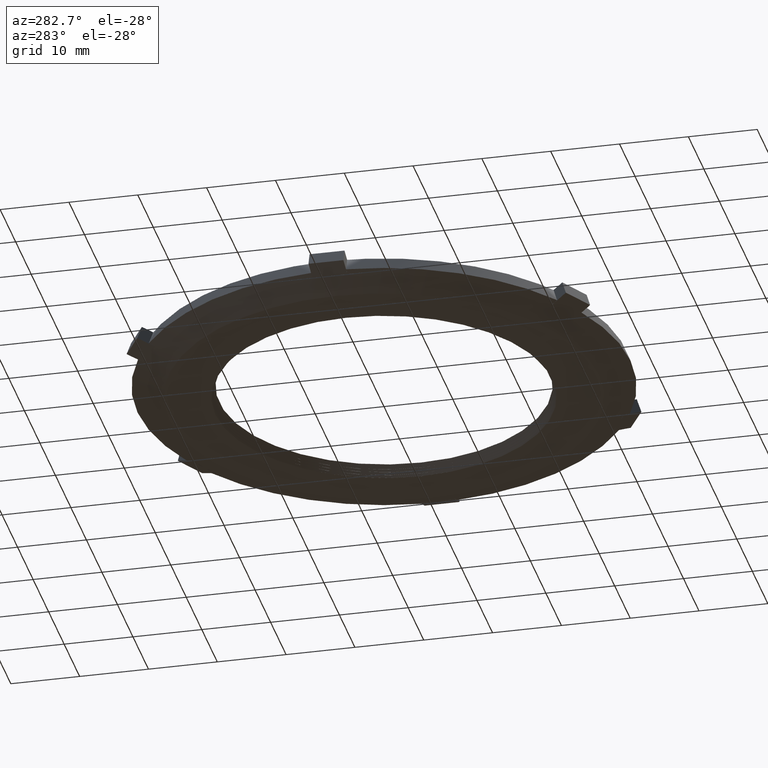
[diagram: clean part render]
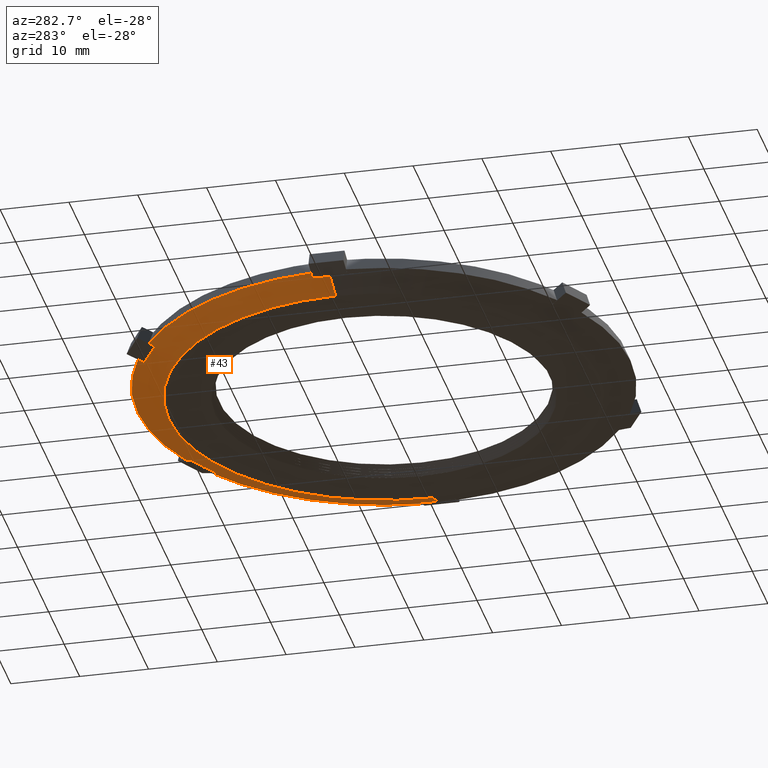
[diagram: same view with one face highlighted and labeled with its STEP entity id]
A machine part, auxiliary view. The second image highlights one B-rep face of the part: STEP entity #43.
In plain terms, the highlighted conical surface has half-angle 70 deg.
Its self-contained STEP definition (entity closure, byte-faithful):
#1 = ORIENTED_EDGE ( 'NONE', *, *, #20, .T. ) ;
#13 = VERTEX_POINT ( 'NONE', #783 ) ;
#14 = ORIENTED_EDGE ( 'NONE', *, *, #89, .F. ) ;
#17 = ORIENTED_EDGE ( 'NONE', *, *, #24, .F. ) ;
#19 = VERTEX_POINT ( 'NONE', #777 ) ;
#20 = EDGE_CURVE ( 'NONE', #19, #13, #776, .T. ) ;
#21 = VERTEX_POINT ( 'NONE', #772 ) ;
#22 = VERTEX_POINT ( 'NONE', #771 ) ;
#23 = ORIENTED_EDGE ( 'NONE', *, *, #270, .T. ) ;
#24 = EDGE_CURVE ( 'NONE', #19, #21, #769, .T. ) ;
#43 = ADVANCED_FACE ( 'NONE', ( #917 ), #914, .T. ) ;
#44 = EDGE_LOOP ( 'NONE', ( #17, #1, #14, #278, #23, #57, #240, #111, #152, #88, #173, #208, #232, #229, #275, #211, #213, #91 ) ) ;
#56 = VERTEX_POINT ( 'NONE', #888 ) ;
#57 = ORIENTED_EDGE ( 'NONE', *, *, #271, .F. ) ;
#82 = VERTEX_POINT ( 'NONE', #874 ) ;
#83 = EDGE_CURVE ( 'NONE', #171, #175, #869, .T. ) ;
#84 = EDGE_CURVE ( 'NONE', #85, #86, #863, .T. ) ;
#85 = VERTEX_POINT ( 'NONE', #862 ) ;
#86 = VERTEX_POINT ( 'NONE', #864 ) ;
#87 = EDGE_CURVE ( 'NONE', #151, #110, #1031, .T. ) ;
#88 = ORIENTED_EDGE ( 'NONE', *, *, #209, .T. ) ;
#89 = EDGE_CURVE ( 'NONE', #226, #13, #1024, .T. ) ;
#91 = ORIENTED_EDGE ( 'NONE', *, *, #114, .F. ) ;
#110 = VERTEX_POINT ( 'NONE', #957 ) ;
#111 = ORIENTED_EDGE ( 'NONE', *, *, #112, .F. ) ;
#112 = EDGE_CURVE ( 'NONE', #151, #277, #951, .T. ) ;
#114 = EDGE_CURVE ( 'NONE', #21, #171, #950, .T. ) ;
#145 = VERTEX_POINT ( 'NONE', #1059 ) ;
#151 = VERTEX_POINT ( 'NONE', #1102 ) ;
#152 = ORIENTED_EDGE ( 'NONE', *, *, #87, .T. ) ;
#171 = VERTEX_POINT ( 'NONE', #1131 ) ;
#172 = VERTEX_POINT ( 'NONE', #1130 ) ;
#173 = ORIENTED_EDGE ( 'NONE', *, *, #174, .F. ) ;
#174 = EDGE_CURVE ( 'NONE', #145, #22, #1128, .T. ) ;
#175 = VERTEX_POINT ( 'NONE', #1127 ) ;
#185 = EDGE_CURVE ( 'NONE', #277, #82, #1151, .T. ) ;
#208 = ORIENTED_EDGE ( 'NONE', *, *, #214, .F. ) ;
#209 = EDGE_CURVE ( 'NONE', #110, #22, #1197, .T. ) ;
#211 = ORIENTED_EDGE ( 'NONE', *, *, #212, .F. ) ;
#212 = EDGE_CURVE ( 'NONE', #175, #172, #1210, .T. ) ;
#213 = ORIENTED_EDGE ( 'NONE', *, *, #83, .F. ) ;
#214 = EDGE_CURVE ( 'NONE', #86, #145, #1215, .T. ) ;
#217 = VERTEX_POINT ( 'NONE', #1622 ) ;
#218 = EDGE_CURVE ( 'NONE', #226, #217, #1629, .T. ) ;
#226 = VERTEX_POINT ( 'NONE', #1624 ) ;
#229 = ORIENTED_EDGE ( 'NONE', *, *, #230, .T. ) ;
#230 = EDGE_CURVE ( 'NONE', #85, #231, #1228, .T. ) ;
#231 = VERTEX_POINT ( 'NONE', #1227 ) ;
#232 = ORIENTED_EDGE ( 'NONE', *, *, #84, .F. ) ;
#240 = ORIENTED_EDGE ( 'NONE', *, *, #185, .F. ) ;
#270 = EDGE_CURVE ( 'NONE', #217, #56, #1287, .T. ) ;
#271 = EDGE_CURVE ( 'NONE', #82, #56, #1315, .T. ) ;
#275 = ORIENTED_EDGE ( 'NONE', *, *, #276, .T. ) ;
#276 = EDGE_CURVE ( 'NONE', #231, #172, #1317, .T. ) ;
#277 = VERTEX_POINT ( 'NONE', #1332 ) ;
#278 = ORIENTED_EDGE ( 'NONE', *, *, #218, .T. ) ;
#765 = DIRECTION ( 'NONE',  ( -1.000000000000000000, 0.0000000000000000000, 0.0000000000000000000 ) ) ;
#766 = DIRECTION ( 'NONE',  ( -0.0000000000000000000, -0.0000000000000000000, -1.000000000000000000 ) ) ;
#767 = CARTESIAN_POINT ( 'NONE',  ( 0.0000000000000000000, 0.0000000000000000000, -0.07999999999999996000 ) ) ;
#768 = AXIS2_PLACEMENT_3D ( 'NONE', #767, #766, #765 ) ;
#769 = CIRCLE ( 'NONE', #768, 1.230000000000000000 ) ;
#771 = CARTESIAN_POINT ( 'NONE',  ( 0.6166221747731183100, 1.268020935780663500, -0.01448535783208483600 ) ) ;
#772 = CARTESIAN_POINT ( 'NONE',  ( 1.230000000000000000, 0.0000000000000000000, -0.07999999999999996000 ) ) ;
#773 = DIRECTION ( 'NONE',  ( -0.9396926207859105400, 1.150753554054427600E-016, 0.3420201433256630000 ) ) ;
#774 = VECTOR ( 'NONE', #773, 39.37007874015748900 ) ;
#775 = CARTESIAN_POINT ( 'NONE',  ( -1.409999999999999900, 1.726694958889552000E-016, -0.01448535783208477000 ) ) ;
#776 = LINE ( 'NONE', #775, #774 ) ;
#777 = CARTESIAN_POINT ( 'NONE',  ( -1.230000000000000000, 1.616480387045538300E-016, -0.07999999999999996000 ) ) ;
#783 = CARTESIAN_POINT ( 'NONE',  ( -1.369999999999999900, -9.698060377508134700E-015, -0.02904416720273242700 ) ) ;
#858 = CARTESIAN_POINT ( 'NONE',  ( 0.6849999999999973900, 1.186454803184682400, -0.02904416720273245200 ) ) ;
#859 = CARTESIAN_POINT ( 'NONE',  ( 0.7138674906260894500, 1.169788149700879300, -0.02904416720273267400 ) ) ;
#860 = CARTESIAN_POINT ( 'NONE',  ( 0.7426637777172788700, 1.152998115238294200, -0.02865278127056319900 ) ) ;
#861 = CARTESIAN_POINT ( 'NONE',  ( 0.7713892946446564400, 1.136085450739270100, -0.02787239152599532000 ) ) ;
#862 = CARTESIAN_POINT ( 'NONE',  ( 0.7713892946446564400, 1.136085450739270100, -0.02787239152599532000 ) ) ;
#863 = B_SPLINE_CURVE_WITH_KNOTS ( 'NONE', 3,
 ( #861, #860, #859, #858 ),
 .UNSPECIFIED., .F., .F.,
 ( 4, 4 ),
 ( 6.517402474198890000E-006, 0.002546515388295958800 ),
 .UNSPECIFIED. ) ;
#864 = CARTESIAN_POINT ( 'NONE',  ( 0.6849999999999973900, 1.186454803184682400, -0.02904416720273245200 ) ) ;
#865 = CARTESIAN_POINT ( 'NONE',  ( 1.369573508532430500, 0.09999999999999999200, -0.02787239152599538600 ) ) ;
#866 = CARTESIAN_POINT ( 'NONE',  ( 1.369857546946369000, 0.06666666666666668000, -0.02865278065454921300 ) ) ;
#867 = CARTESIAN_POINT ( 'NONE',  ( 1.369999999999999900, 0.03333333333333333300, -0.02904416720273260400 ) ) ;
#868 = CARTESIAN_POINT ( 'NONE',  ( 1.369999999999999900, 0.0000000000000000000, -0.02904416720273242700 ) ) ;
#869 = B_SPLINE_CURVE_WITH_KNOTS ( 'NONE', 3,
 ( #868, #867, #866, #865 ),
 .UNSPECIFIED., .F., .F.,
 ( 4, 4 ),
 ( 0.002540199999999999800, 0.005080200000000000000 ),
 .UNSPECIFIED. ) ;
#874 = CARTESIAN_POINT ( 'NONE',  ( -0.7713892946446643300, 1.136085450739265000, -0.02787239152599525100 ) ) ;
#888 = CARTESIAN_POINT ( 'NONE',  ( -0.7898272555300144300, 1.168020935780658600, -0.01448535783208478700 ) ) ;
#911 = DIRECTION ( 'NONE',  ( 1.000000000000000000, 0.0000000000000000000, 0.0000000000000000000 ) ) ;
#912 = DIRECTION ( 'NONE',  ( 0.0000000000000000000, 0.0000000000000000000, 1.000000000000000000 ) ) ;
#913 = AXIS2_PLACEMENT_3D ( 'NONE', #916, #912, #911 ) ;
#914 = CONICAL_SURFACE ( 'NONE', #913, 1.409999999999999900, 1.221730476396036800 ) ;
#916 = CARTESIAN_POINT ( 'NONE',  ( 0.0000000000000000000, 0.0000000000000000000, -0.01448535783208477000 ) ) ;
#917 = FACE_OUTER_BOUND ( 'NONE', #44, .T. ) ;
#943 = DIRECTION ( 'NONE',  ( 0.9396926207859105400, 0.0000000000000000000, 0.3420201433256630000 ) ) ;
#944 = VECTOR ( 'NONE', #943, 39.37007874015748900 ) ;
#945 = CARTESIAN_POINT ( 'NONE',  ( 1.409999999999999900, 0.0000000000000000000, -0.01448535783208477000 ) ) ;
#946 = CARTESIAN_POINT ( 'NONE',  ( -0.6850000000000054900, 1.186454803184677800, -0.02904416720273245200 ) ) ;
#947 = CARTESIAN_POINT ( 'NONE',  ( -0.6561324637071350700, 1.203121483034208100, -0.02904416720273258000 ) ) ;
#948 = CARTESIAN_POINT ( 'NONE',  ( -0.6271937236552243000, 1.219664781516571800, -0.02865278003854018400 ) ) ;
#949 = CARTESIAN_POINT ( 'NONE',  ( -0.5981842138877770900, 1.236085450739266000, -0.02787239152599525100 ) ) ;
#950 = LINE ( 'NONE', #945, #944 ) ;
#951 = B_SPLINE_CURVE_WITH_KNOTS ( 'NONE', 3,
 ( #949, #948, #947, #946 ),
 .UNSPECIFIED., .F., .F.,
 ( 4, 4 ),
 ( 1.945131258847855700E-005, 0.002559453316547011000 ),
 .UNSPECIFIED. ) ;
#957 = CARTESIAN_POINT ( 'NONE',  ( -0.6166221747731272000, 1.268020935780659100, -0.01448535783208482500 ) ) ;
#1019 = CARTESIAN_POINT ( 'NONE',  ( -1.369999999999999900, -9.698060377508134700E-015, -0.02904416720273242700 ) ) ;
#1020 = CARTESIAN_POINT ( 'NONE',  ( -1.370000000000000100, 0.03333333333332367400, -0.02904416720273264900 ) ) ;
#1021 = CARTESIAN_POINT ( 'NONE',  ( -1.369857546946369400, 0.06666666666665706200, -0.02865278065454929200 ) ) ;
#1022 = CARTESIAN_POINT ( 'NONE',  ( -1.369573508532431200, 0.09999999999999043000, -0.02787239152599538600 ) ) ;
#1024 = B_SPLINE_CURVE_WITH_KNOTS ( 'NONE', 3,
 ( #1022, #1021, #1020, #1019 ),
 .UNSPECIFIED., .F., .F.,
 ( 4, 4 ),
 ( 2.000000000048837700E-007, 0.002540200000000008100 ),
 .UNSPECIFIED. ) ;
#1027 = CARTESIAN_POINT ( 'NONE',  ( -0.6166221747731272000, 1.268020935780659100, -0.01448535783208482500 ) ) ;
#1028 = CARTESIAN_POINT ( 'NONE',  ( -0.6104762362707123500, 1.257375858034282900, -0.01894796936002788100 ) ) ;
#1029 = CARTESIAN_POINT ( 'NONE',  ( -0.6043302506046527300, 1.246730698598077500, -0.02341032108163182400 ) ) ;
#1030 = CARTESIAN_POINT ( 'NONE',  ( -0.5981842138877770900, 1.236085450739266000, -0.02787239152599525100 ) ) ;
#1031 = B_SPLINE_CURVE_WITH_KNOTS ( 'NONE', 3,
 ( #1030, #1029, #1028, #1027 ),
 .UNSPECIFIED., .F., .F.,
 ( 4, 4 ),
 ( 8.781270543147916000E-005, 0.001084271985295549500 ),
 .UNSPECIFIED. ) ;
#1042 = CARTESIAN_POINT ( 'NONE',  ( 0.6166221747731183100, 1.268020935780663500, -0.01448535783208483600 ) ) ;
#1043 = CARTESIAN_POINT ( 'NONE',  ( 0.6104762362707036900, 1.257375858034287300, -0.01894796936002783200 ) ) ;
#1044 = CARTESIAN_POINT ( 'NONE',  ( 0.6043302506046438500, 1.246730698598081900, -0.02341032108163180300 ) ) ;
#1045 = CARTESIAN_POINT ( 'NONE',  ( 0.5981842138877685500, 1.236085450739269800, -0.02787239152599538600 ) ) ;
#1059 = CARTESIAN_POINT ( 'NONE',  ( 0.5981842138877685500, 1.236085450739269800, -0.02787239152599538600 ) ) ;
#1102 = CARTESIAN_POINT ( 'NONE',  ( -0.5981842138877770900, 1.236085450739266000, -0.02787239152599525100 ) ) ;
#1127 = CARTESIAN_POINT ( 'NONE',  ( 1.369573508532430500, 0.09999999999999999200, -0.02787239152599538600 ) ) ;
#1128 = B_SPLINE_CURVE_WITH_KNOTS ( 'NONE', 3,
 ( #1045, #1044, #1043, #1042 ),
 .UNSPECIFIED., .F., .F.,
 ( 4, 4 ),
 ( 8.781270543147676100E-005, 0.001084271985295553600 ),
 .UNSPECIFIED. ) ;
#1130 = CARTESIAN_POINT ( 'NONE',  ( 1.406449430303130500, 0.09999999999999999200, -0.01448535783208477900 ) ) ;
#1131 = CARTESIAN_POINT ( 'NONE',  ( 1.369999999999999900, 0.0000000000000000000, -0.02904416720273242700 ) ) ;
#1151 = B_SPLINE_CURVE_WITH_KNOTS ( 'NONE', 3,
 ( #1164, #1172, #1171, #1170 ),
 .UNSPECIFIED., .F., .F.,
 ( 4, 4 ),
 ( 0.002559453316547011000, 0.005099451302368773800 ),
 .UNSPECIFIED. ) ;
#1164 = CARTESIAN_POINT ( 'NONE',  ( -0.6850000000000054900, 1.186454803184677800, -0.02904416720273245200 ) ) ;
#1170 = CARTESIAN_POINT ( 'NONE',  ( -0.7713892946446643300, 1.136085450739265000, -0.02787239152599525100 ) ) ;
#1171 = CARTESIAN_POINT ( 'NONE',  ( -0.7426637777172869800, 1.152998115238289100, -0.02865278127056310900 ) ) ;
#1172 = CARTESIAN_POINT ( 'NONE',  ( -0.7138674906260974500, 1.169788149700874400, -0.02904416720273258000 ) ) ;
#1179 = CARTESIAN_POINT ( 'NONE',  ( 0.5981842138877685500, 1.236085450739269800, -0.02787239152599538600 ) ) ;
#1189 = DIRECTION ( 'NONE',  ( -1.000000000000000000, 0.0000000000000000000, 0.0000000000000000000 ) ) ;
#1190 = DIRECTION ( 'NONE',  ( -0.0000000000000000000, -0.0000000000000000000, -1.000000000000000000 ) ) ;
#1191 = CARTESIAN_POINT ( 'NONE',  ( 0.0000000000000000000, 0.0000000000000000000, -0.01448535783208477000 ) ) ;
#1192 = AXIS2_PLACEMENT_3D ( 'NONE', #1191, #1190, #1189 ) ;
#1197 = CIRCLE ( 'NONE', #1192, 1.409999999999999900 ) ;
#1206 = CARTESIAN_POINT ( 'NONE',  ( 1.370191600141304600, 0.09999999999999999200, -0.02764802160065276500 ) ) ;
#1207 = CARTESIAN_POINT ( 'NONE',  ( 1.369985569633692000, 0.09999999999999999200, -0.02772281165477139000 ) ) ;
#1208 = CARTESIAN_POINT ( 'NONE',  ( 1.369779539097413700, 0.09999999999999999200, -0.02779760162992110700 ) ) ;
#1209 = CARTESIAN_POINT ( 'NONE',  ( 1.369573508532430500, 0.09999999999999999200, -0.02787239152599538600 ) ) ;
#1210 = B_SPLINE_CURVE_WITH_KNOTS ( 'NONE', 3,
 ( #1209, #1208, #1207, #1206, #1218, #1217, #1216 ),
 .UNSPECIFIED., .F., .F.,
 ( 4, 3, 4 ),
 ( 0.003246004428661492800, 0.003262706335694099500, 0.004242463706418421300 ),
 .UNSPECIFIED. ) ;
#1212 = CARTESIAN_POINT ( 'NONE',  ( 0.6271937236552156400, 1.219664781516576000, -0.02865278003854022200 ) ) ;
#1213 = CARTESIAN_POINT ( 'NONE',  ( 0.6561324637071267500, 1.203121483034212300, -0.02904416720273267400 ) ) ;
#1214 = CARTESIAN_POINT ( 'NONE',  ( 0.6849999999999973900, 1.186454803184682400, -0.02904416720273245200 ) ) ;
#1215 = B_SPLINE_CURVE_WITH_KNOTS ( 'NONE', 3,
 ( #1214, #1213, #1212, #1179 ),
 .UNSPECIFIED., .F., .F.,
 ( 4, 4 ),
 ( 0.002546515388295958800, 0.005086517392254493200 ),
 .UNSPECIFIED. ) ;
#1216 = CARTESIAN_POINT ( 'NONE',  ( 1.406449430303130500, 0.09999999999999999200, -0.01448535783208477900 ) ) ;
#1217 = CARTESIAN_POINT ( 'NONE',  ( 1.394363580570838800, 0.09999999999999999200, -0.01887317039473259200 ) ) ;
#1218 = CARTESIAN_POINT ( 'NONE',  ( 1.382277639644670500, 0.09999999999999999200, -0.02326073178123785500 ) ) ;
#1220 = CARTESIAN_POINT ( 'NONE',  ( 0.7898272555300063200, 1.168020935780664100, -0.01448535783208476000 ) ) ;
#1221 = CARTESIAN_POINT ( 'NONE',  ( 0.7836813170275915800, 1.157375858034288100, -0.01894796936002778700 ) ) ;
#1222 = CARTESIAN_POINT ( 'NONE',  ( 0.7775353313615318600, 1.146730698598082300, -0.02341032108163185900 ) ) ;
#1223 = CARTESIAN_POINT ( 'NONE',  ( 0.7713892946446564400, 1.136085450739270100, -0.02787239152599532000 ) ) ;
#1227 = CARTESIAN_POINT ( 'NONE',  ( 0.7898272555300063200, 1.168020935780664100, -0.01448535783208476000 ) ) ;
#1228 = B_SPLINE_CURVE_WITH_KNOTS ( 'NONE', 3,
 ( #1223, #1222, #1221, #1220 ),
 .UNSPECIFIED., .F., .F.,
 ( 4, 4 ),
 ( 8.781270543146861600E-005, 0.001084271985295553200 ),
 .UNSPECIFIED. ) ;
#1245 = CARTESIAN_POINT ( 'NONE',  ( -0.7836813170275996900, 1.157375858034282600, -0.01894796936002780800 ) ) ;
#1260 = CARTESIAN_POINT ( 'NONE',  ( -0.7898272555300144300, 1.168020935780658600, -0.01448535783208478700 ) ) ;
#1285 = CARTESIAN_POINT ( 'NONE',  ( 0.0000000000000000000, 0.0000000000000000000, -0.01448535783208477000 ) ) ;
#1286 = AXIS2_PLACEMENT_3D ( 'NONE', #1285, #1293, #1292 ) ;
#1287 = CIRCLE ( 'NONE', #1286, 1.409999999999999900 ) ;
#1292 = DIRECTION ( 'NONE',  ( -1.000000000000000000, 0.0000000000000000000, 0.0000000000000000000 ) ) ;
#1293 = DIRECTION ( 'NONE',  ( -0.0000000000000000000, -0.0000000000000000000, -1.000000000000000000 ) ) ;
#1313 = CARTESIAN_POINT ( 'NONE',  ( -0.7775353313615399600, 1.146730698598077000, -0.02341032108163181000 ) ) ;
#1314 = CARTESIAN_POINT ( 'NONE',  ( -0.7713892946446643300, 1.136085450739265000, -0.02787239152599525100 ) ) ;
#1315 = B_SPLINE_CURVE_WITH_KNOTS ( 'NONE', 3,
 ( #1314, #1313, #1245, #1260 ),
 .UNSPECIFIED., .F., .F.,
 ( 4, 4 ),
 ( 8.781270543147857700E-005, 0.001084271985295553800 ),
 .UNSPECIFIED. ) ;
#1316 = AXIS2_PLACEMENT_3D ( 'NONE', #1337, #1336, #1335 ) ;
#1317 = CIRCLE ( 'NONE', #1316, 1.409999999999999900 ) ;
#1332 = CARTESIAN_POINT ( 'NONE',  ( -0.6850000000000054900, 1.186454803184677800, -0.02904416720273245200 ) ) ;
#1335 = DIRECTION ( 'NONE',  ( -1.000000000000000000, 0.0000000000000000000, 0.0000000000000000000 ) ) ;
#1336 = DIRECTION ( 'NONE',  ( -0.0000000000000000000, -0.0000000000000000000, -1.000000000000000000 ) ) ;
#1337 = CARTESIAN_POINT ( 'NONE',  ( 0.0000000000000000000, 0.0000000000000000000, -0.01448535783208477000 ) ) ;
#1612 = CARTESIAN_POINT ( 'NONE',  ( -1.402042895990377900, 0.09999999999999020800, -0.01608515700067470600 ) ) ;
#1613 = CARTESIAN_POINT ( 'NONE',  ( -1.399839624242132700, 0.09999999999999022200, -0.01688504393683925400 ) ) ;
#1614 = CARTESIAN_POINT ( 'NONE',  ( -1.389750984907858200, 0.09999999999999029100, -0.02054767466479593200 ) ) ;
#1622 = CARTESIAN_POINT ( 'NONE',  ( -1.406449430303131000, 0.09999999999999018000, -0.01448535783208486900 ) ) ;
#1624 = CARTESIAN_POINT ( 'NONE',  ( -1.369573508532431200, 0.09999999999999043000, -0.02787239152599538600 ) ) ;
#1627 = CARTESIAN_POINT ( 'NONE',  ( -1.379662281117536100, 0.09999999999999036000, -0.02421012785546634500 ) ) ;
#1628 = CARTESIAN_POINT ( 'NONE',  ( -1.369573508532431200, 0.09999999999999043000, -0.02787239152599538600 ) ) ;
#1629 = B_SPLINE_CURVE_WITH_KNOTS ( 'NONE', 3,
 ( #1628, #1627, #1614, #1613, #1612, #1638, #1637 ),
 .UNSPECIFIED., .F., .F.,
 ( 4, 3, 4 ),
 ( 0.002444858059863840700, 0.003262706334336296300, 0.003441317337864570200 ),
 .UNSPECIFIED. ) ;
#1637 = CARTESIAN_POINT ( 'NONE',  ( -1.406449430303131000, 0.09999999999999018000, -0.01448535783208486900 ) ) ;
#1638 = CARTESIAN_POINT ( 'NONE',  ( -1.404246164663086600, 0.09999999999999019400, -0.01528526159296037100 ) ) ;